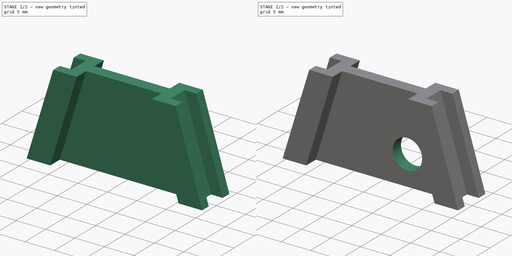
[diagram: build sequence overview — one tinted view per stage of 2, left to right]
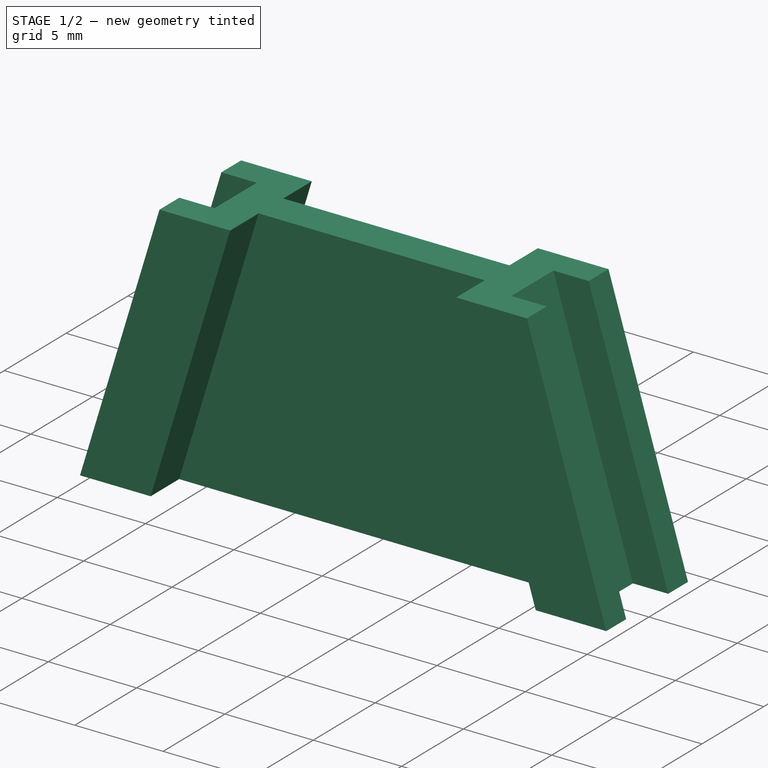
[diagram: stage 1 of 2 — iso view after this stage's code; geometry added in this stage tinted green]
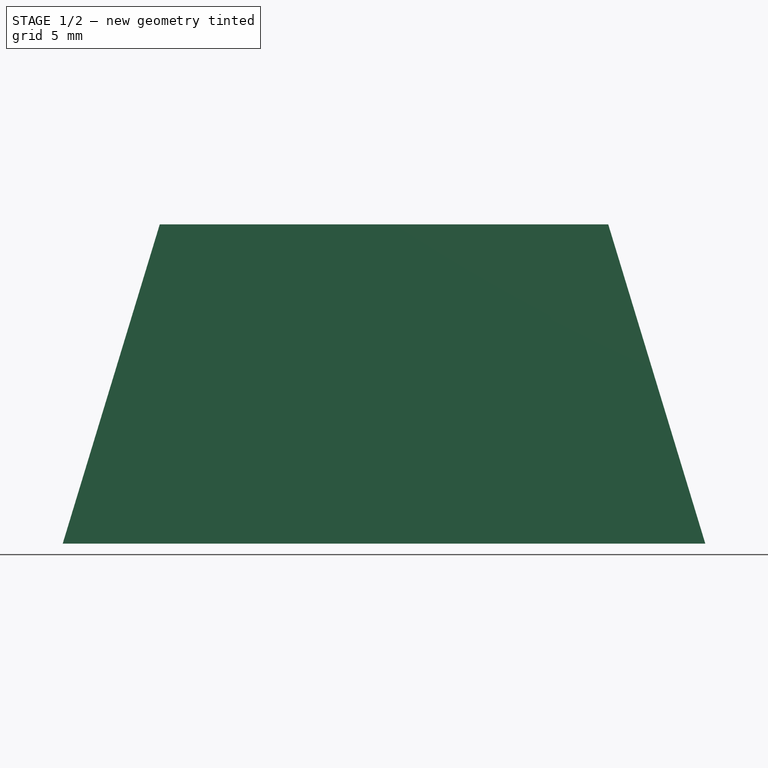
[diagram: stage 1 of 2 — front view after this stage's code; geometry added in this stage tinted green]
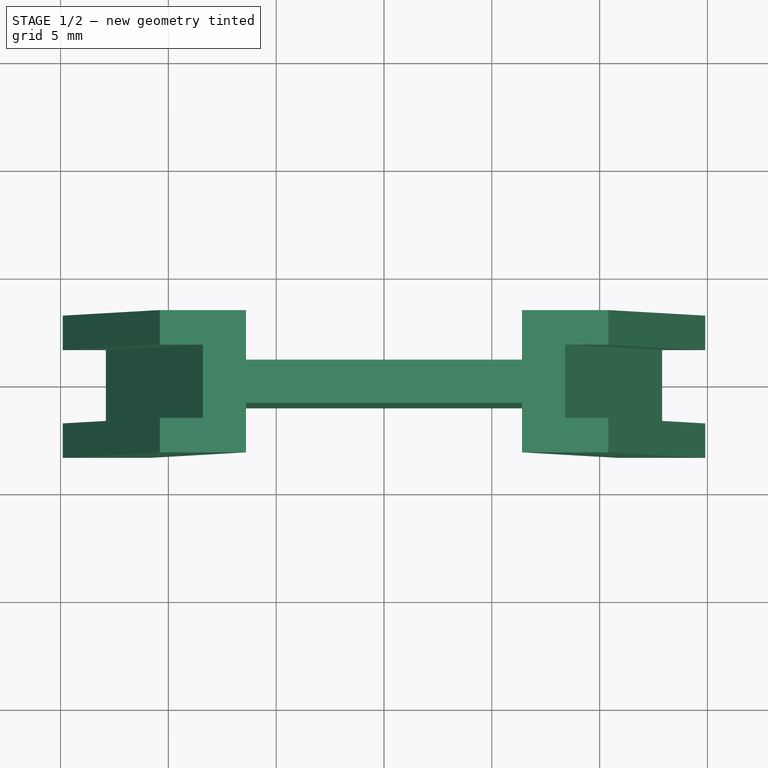
[diagram: stage 1 of 2 — top view after this stage's code; geometry added in this stage tinted green]
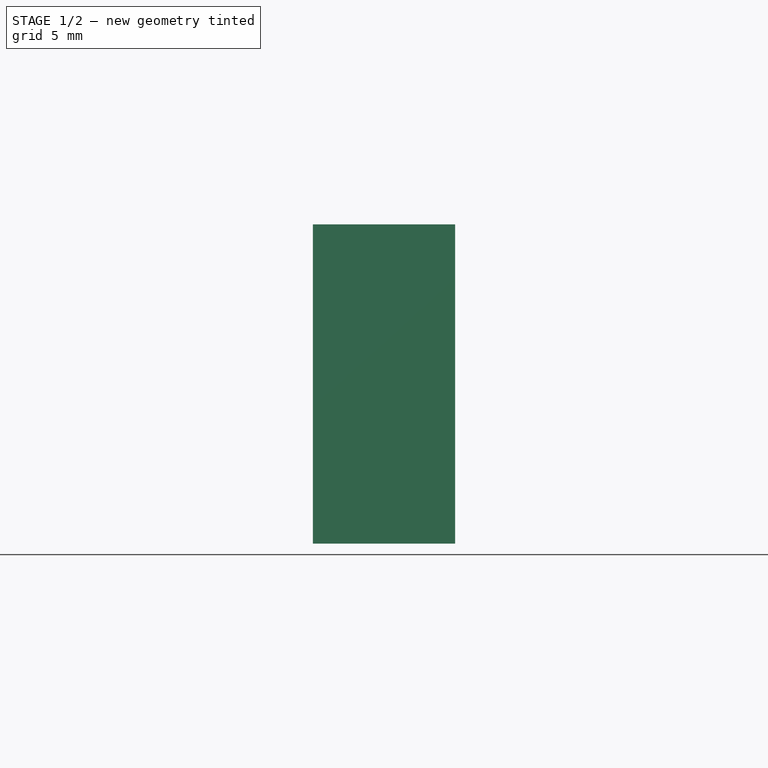
[diagram: stage 1 of 2 — right view after this stage's code; geometry added in this stage tinted green]
FCSTD DOCUMENT  (FreeCAD 0.18R4 (GitTag))
Label: smars_chassis_blank_v2_5mm
License: All rights reserved
LicenseURL: http://en.wikipedia.org/wiki/All_rights_reserved
objects: Sketcher::SketchObject×3, Part::Plane×1, PartDesign::AdditiveLoft×1, PartDesign::Pocket×1, PartDesign::Body×1
note: 9 computed .brp shape members not serialized (recipe doc carries the construction recipe); baked Part::Feature solids carry a one-line shape summary decoded from their .brp

FEATURE [Part::Plane] Plane
  AttacherType = Attacher::AttachEngine3D
  Length = 10
  Placement = pos=(0,0,12.5) rot=(0,0,1;0rad)
  Width = 10
FEATURE [Sketcher::SketchObject] Sketch001  label="top"
  Support = -> [Plane]
  sketch-geometry (20):
    g0: LineSegment StartX=-14.9 StartY=-3.3 StartZ=0 EndX=-10.9 EndY=-3.3 EndZ=0
    g1: LineSegment StartX=-10.9 StartY=-3.3 StartZ=0 EndX=-10.9 EndY=-1 EndZ=0
    g2: LineSegment StartX=-10.9 StartY=-1 StartZ=0 EndX=10.9 EndY=-1 EndZ=0
    g3: LineSegment StartX=10.9 StartY=-1 StartZ=0 EndX=10.9 EndY=-3.3 EndZ=0
    g4: LineSegment StartX=10.9 StartY=-3.3 StartZ=0 EndX=14.9 EndY=-3.3 EndZ=0
    g5: LineSegment StartX=14.9 StartY=-3.3 StartZ=0 EndX=14.9 EndY=-1.7 EndZ=0
    g6: LineSegment StartX=14.9 StartY=-1.7 StartZ=0 EndX=12.9 EndY=-1.7 EndZ=0
    g7: LineSegment StartX=12.9 StartY=-1.7 StartZ=0 EndX=12.9 EndY=1.7 EndZ=0
    g8: LineSegment StartX=12.9 StartY=1.7 StartZ=0 EndX=14.9 EndY=1.7 EndZ=0
    g9: LineSegment StartX=14.9 StartY=1.7 StartZ=0 EndX=14.9 EndY=3.3 EndZ=0
    g10: LineSegment StartX=14.9 StartY=3.3 StartZ=0 EndX=10.9 EndY=3.3 EndZ=0
    g11: LineSegment StartX=10.9 StartY=3.3 StartZ=0 EndX=10.9 EndY=1 EndZ=0
    g12: LineSegment StartX=10.9 StartY=1 StartZ=0 EndX=-10.9 EndY=1 EndZ=0
    g13: LineSegment StartX=-10.9 StartY=1 StartZ=0 EndX=-10.9 EndY=3.3 EndZ=0
    g14: LineSegment StartX=-10.9 StartY=3.3 StartZ=0 EndX=-14.9 EndY=3.3 EndZ=0
    g15: LineSegment StartX=-14.9 StartY=3.3 StartZ=0 EndX=-14.9 EndY=1.7 EndZ=0
    g16: LineSegment StartX=-14.9 StartY=1.7 StartZ=0 EndX=-12.9 EndY=1.7 EndZ=0
    g17: LineSegment StartX=-12.9 StartY=1.7 StartZ=0 EndX=-12.9 EndY=-1.7 EndZ=0
    g18: LineSegment StartX=-12.9 StartY=-1.7 StartZ=0 EndX=-14.9 EndY=-1.7 EndZ=0
    g19: LineSegment StartX=-14.9 StartY=-1.7 StartZ=0 EndX=-14.9 EndY=-3.3 EndZ=0
  constraints (61):
    c: Coincident(g0,g1)
    c: Coincident(g1,g2)
    c: Coincident(g2,g3)
    c: Coincident(g3,g4)
    c: Coincident(g4,g5)
    c: Coincident(g5,g6)
    c: Coincident(g6,g7)
    c: Coincident(g7,g8)
    c: Coincident(g8,g9)
    c: Coincident(g9,g10)
    c: Coincident(g10,g11)
    c: Coincident(g11,g12)
    c: Coincident(g12,g13)
    c: Coincident(g13,g14)
    c: Coincident(g14,g15)
    c: Coincident(g15,g16)
    c: Coincident(g16,g17)
    c: Coincident(g17,g18)
    c: Coincident(g18,g19)
    c: Coincident(g19,g0)
    c: Horizontal(g14)
    c: Horizontal(g12)
    c: Horizontal(g10)
    c: Horizontal(g8)
    c: Horizontal(g6)
    c: Horizontal(g4)
    c: Horizontal(g16)
    c: Vertical(g15)
    c: Vertical(g19)
    c: Vertical(g17)
    c: Vertical(g13)
    c: Vertical(g3)
    c: Vertical(g11)
    c: Vertical(g9)
    c: Vertical(g7)
    c: Parallel(g16,g18)
    c: DistanceY(g15,g15) = 1.6
    c: Symmetric(g1,g2,g-2)
    c: Symmetric(g12,g1,g-1)
    c: Horizontal(g0)
    c: DistanceY(g1,g12) = 2
    c: DistanceY(g17,g17) = 3.4
    c: Equal(g15,g19)
    c: Equal(g19,g9)
    c: Equal(g9,g5)
    c: Equal(g17,g7)
    c: Equal(g13,g1)
    c: Equal(g1,g3)
    c: Equal(g3,g11)
    c: DistanceX(g14,g14) = 4
    c: DistanceX(g18,g18) = 2
    c: Equal(g14,g0)
    c: Equal(g0,g10)
    c: Equal(g10,g4)
    c: Equal(g15,g19)
    c: Equal(g19,g5)
    c: Equal(g5,g9)
    c: Equal(g18,g16)
    c: Equal(g16,g8)
    c: Equal(g8,g6)
    c: DistanceX(g16,g7) = 25.8
FEATURE [Sketcher::SketchObject] CopySketch002  label="bottom"
  Placement = pos=(0,0,14.8) rot=(0,0,1;0rad)
  sketch-geometry (20):
    g0: LineSegment StartX=-10.4 StartY=-3.3 StartZ=0 EndX=-6.39999 EndY=-3.3 EndZ=0
    g1: LineSegment StartX=-6.39999 StartY=-3.3 StartZ=0 EndX=-6.39999 EndY=-1 EndZ=0
    g2: LineSegment StartX=-6.39999 StartY=-1 StartZ=0 EndX=6.39999 EndY=-1 EndZ=0
    g3: LineSegment StartX=6.39999 StartY=-1 StartZ=0 EndX=6.39999 EndY=-3.3 EndZ=0
    g4: LineSegment StartX=6.39999 StartY=-3.3 StartZ=0 EndX=10.4 EndY=-3.3 EndZ=0
    g5: LineSegment StartX=10.4 StartY=-3.3 StartZ=0 EndX=10.4 EndY=-1.7 EndZ=0
    g6: LineSegment StartX=10.4 StartY=-1.7 StartZ=0 EndX=8.40001 EndY=-1.7 EndZ=0
    g7: LineSegment StartX=8.40001 StartY=-1.7 StartZ=0 EndX=8.40001 EndY=1.7 EndZ=0
    g8: LineSegment StartX=8.40001 StartY=1.7 StartZ=0 EndX=10.4 EndY=1.7 EndZ=0
    g9: LineSegment StartX=10.4 StartY=1.7 StartZ=0 EndX=10.4 EndY=3.3 EndZ=0
    g10: LineSegment StartX=10.4 StartY=3.3 StartZ=0 EndX=6.40001 EndY=3.3 EndZ=0
    g11: LineSegment StartX=6.40001 StartY=3.3 StartZ=0 EndX=6.40001 EndY=1 EndZ=0
    g12: LineSegment StartX=6.40001 StartY=1 StartZ=0 EndX=-6.39999 EndY=1 EndZ=0
    g13: LineSegment StartX=-6.39999 StartY=1 StartZ=0 EndX=-6.39999 EndY=3.3 EndZ=0
    g14: LineSegment StartX=-6.39999 StartY=3.3 StartZ=0 EndX=-10.4 EndY=3.3 EndZ=0
    g15: LineSegment StartX=-10.4 StartY=3.3 StartZ=0 EndX=-10.4 EndY=1.7 EndZ=0
    g16: LineSegment StartX=-10.4 StartY=1.7 StartZ=0 EndX=-8.39999 EndY=1.7 EndZ=0
    g17: LineSegment StartX=-8.39999 StartY=1.7 StartZ=0 EndX=-8.39999 EndY=-1.7 EndZ=0
    g18: LineSegment StartX=-8.39999 StartY=-1.7 StartZ=0 EndX=-10.4 EndY=-1.7 EndZ=0
    g19: LineSegment StartX=-10.4 StartY=-1.7 StartZ=0 EndX=-10.4 EndY=-3.3 EndZ=0
  constraints (61):
    c: Coincident(g0,g1)
    c: Coincident(g1,g2)
    c: Coincident(g2,g3)
    c: Coincident(g3,g4)
    c: Coincident(g4,g5)
    c: Coincident(g5,g6)
    c: Coincident(g6,g7)
    c: Coincident(g7,g8)
    c: Coincident(g8,g9)
    c: Coincident(g9,g10)
    c: Coincident(g10,g11)
    c: Coincident(g11,g12)
    c: Coincident(g12,g13)
    c: Coincident(g13,g14)
    c: Coincident(g14,g15)
    c: Coincident(g15,g16)
    c: Coincident(g16,g17)
    c: Coincident(g17,g18)
    c: Coincident(g18,g19)
    c: Coincident(g19,g0)
    c: Horizontal(g14)
    c: Horizontal(g12)
    c: Horizontal(g10)
    c: Horizontal(g8)
    c: Horizontal(g6)
    c: Horizontal(g4)
    c: Horizontal(g16)
    c: Vertical(g15)
    c: Vertical(g19)
    c: Vertical(g17)
    c: Vertical(g13)
    c: Vertical(g3)
    c: Vertical(g11)
    c: Vertical(g9)
    c: Vertical(g7)
    c: Parallel(g16,g18)
    c: DistanceY(g15,g15) = 1.6
    c: Symmetric(g1,g2,g-2)
    c: Symmetric(g12,g1,g-1)
    c: DistanceY(g1,g12) = 2
    c: DistanceY(g17,g17) = 3.4
    c: Equal(g15,g19)
    c: Equal(g19,g9)
    c: Equal(g9,g5)
    c: Equal(g17,g7)
    c: Equal(g13,g1)
    c: Equal(g1,g3)
    c: Equal(g3,g11)
    c: DistanceX(g14,g14) = 4
    c: DistanceX(g18,g18) = 2
    c: Equal(g14,g0)
    c: Equal(g0,g10)
    c: Equal(g10,g4)
    c: Equal(g15,g19)
    c: Equal(g19,g5)
    c: Equal(g5,g9)
    c: Equal(g18,g16)
    c: Equal(g16,g8)
    c: Equal(g8,g6)
    c: DistanceX(g16,g7) = 16.8
    c: Horizontal(g0)
FEATURE [PartDesign::AdditiveLoft] AdditiveLoft
  Closed = false
  Placement = pos=(0,0,14.8) rot=(0,0,1;0rad)
  Profile = -> CopySketch002
  Ruled = false
  Sections = -> [Sketch001]
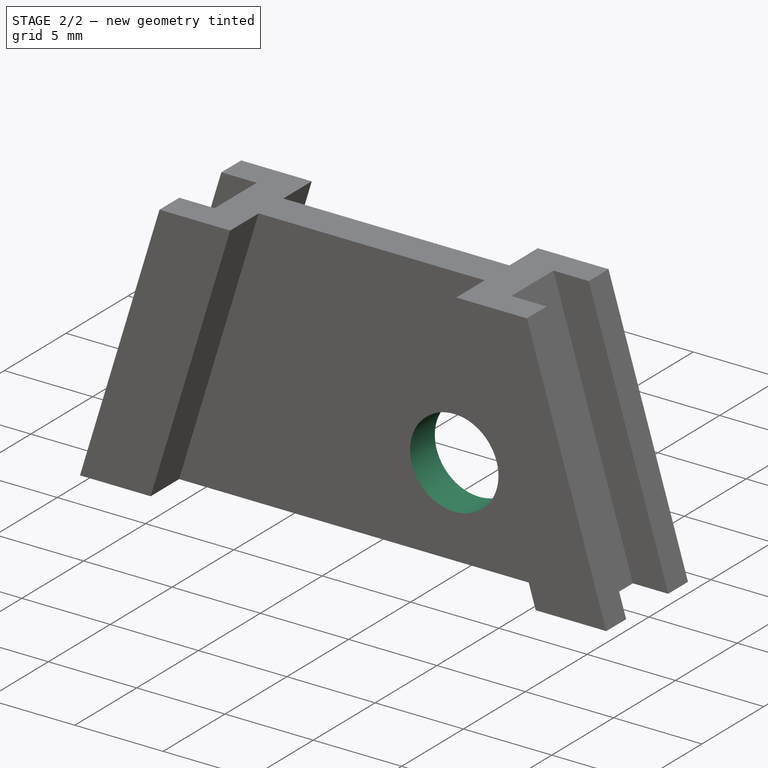
[diagram: stage 2 of 2 — iso view after this stage's code; geometry added in this stage tinted green]
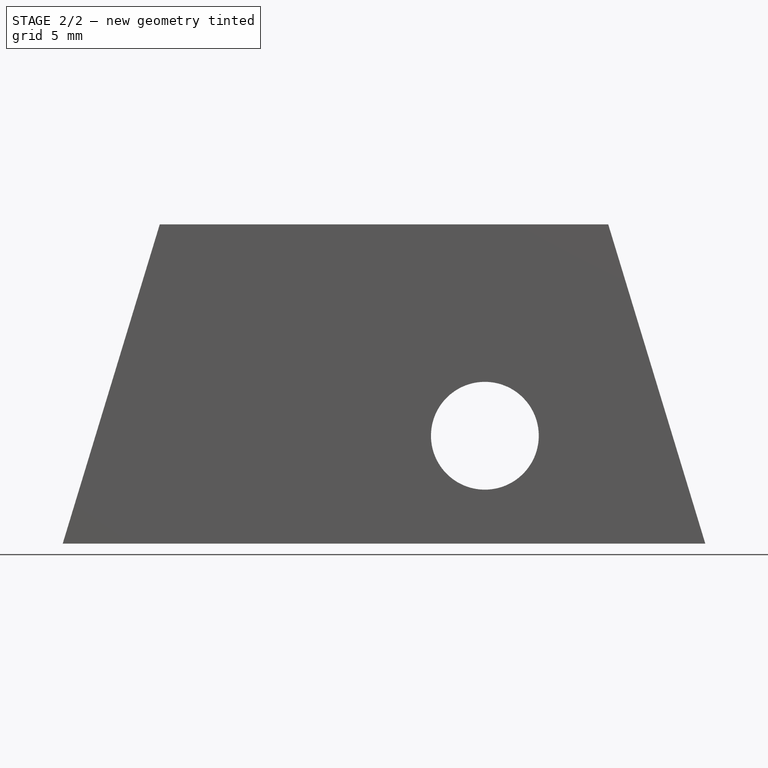
[diagram: stage 2 of 2 — front view after this stage's code; geometry added in this stage tinted green]
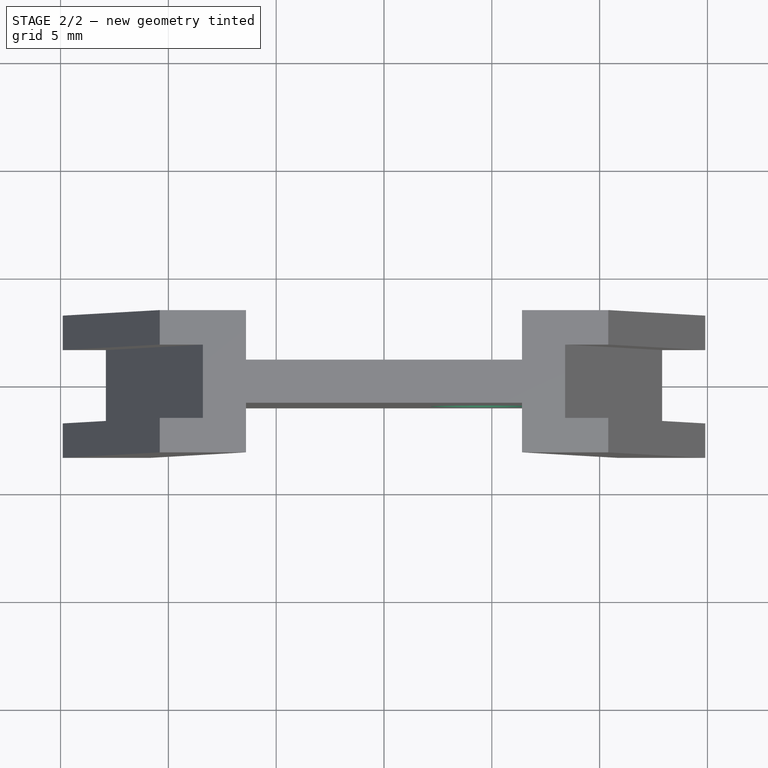
[diagram: stage 2 of 2 — top view after this stage's code; geometry added in this stage tinted green]
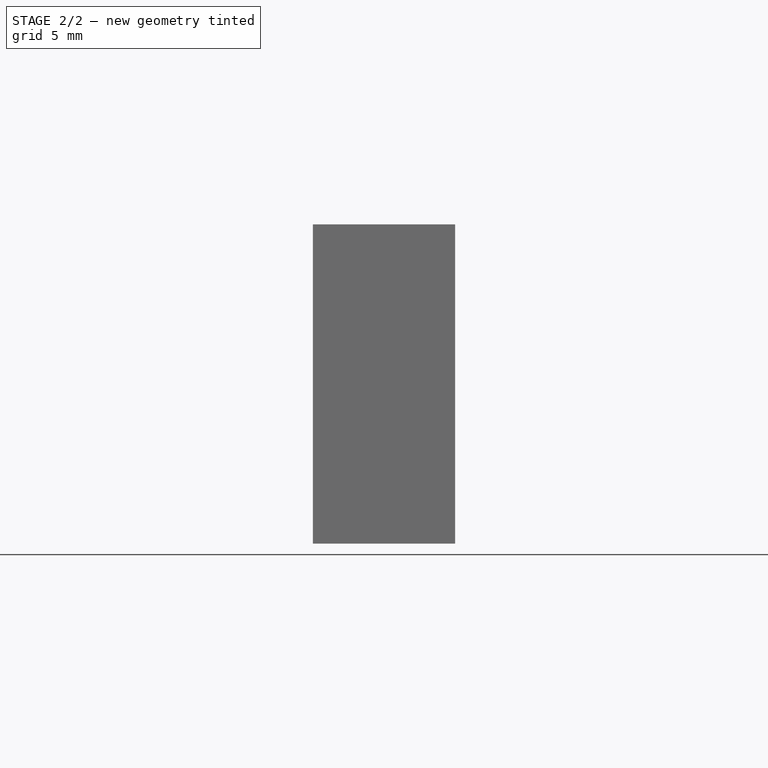
[diagram: stage 2 of 2 — right view after this stage's code; geometry added in this stage tinted green]
FEATURE [Sketcher::SketchObject] Sketch
  ExternalGeometry = -> [AdditiveLoft]
  MapMode = 45
  Placement = pos=(6.12258e-06,1,6.75838) rot=(0.57735,0.57735,0.57735;4.18879rad)
  Support = -> [AdditiveLoft]
  sketch-geometry (1):
    g0: Circle CenterX=-1.75838 CenterY=4.67787 CenterZ=0 NormalX=0 NormalY=0 NormalZ=1 AngleXU=0 Radius=2.5
  constraints (2):
    c: Radius(g0) = 2.5
    c: Distance(g0,g-3) = 5
FEATURE [PartDesign::Pocket] Pocket
  BaseFeature = -> AdditiveLoft
  Length = 5
  Length2 = 100
  Placement = pos=(0,0,14.8) rot=(0,0,1;0rad)
  Profile = -> Sketch
  Type = 1
FEATURE [PartDesign::Body] Body  label="Blank"
  Group = -> [AdditiveLoft,Sketch,Pocket]
  Origin = -> Origin
  Tip = -> Pocket
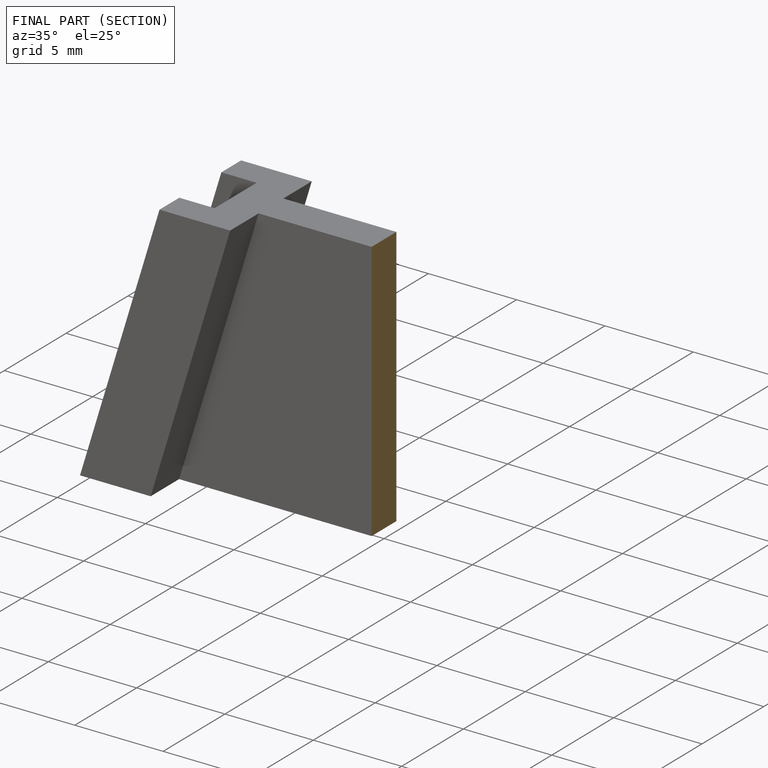
[diagram: finished part — half-section view (interior)]
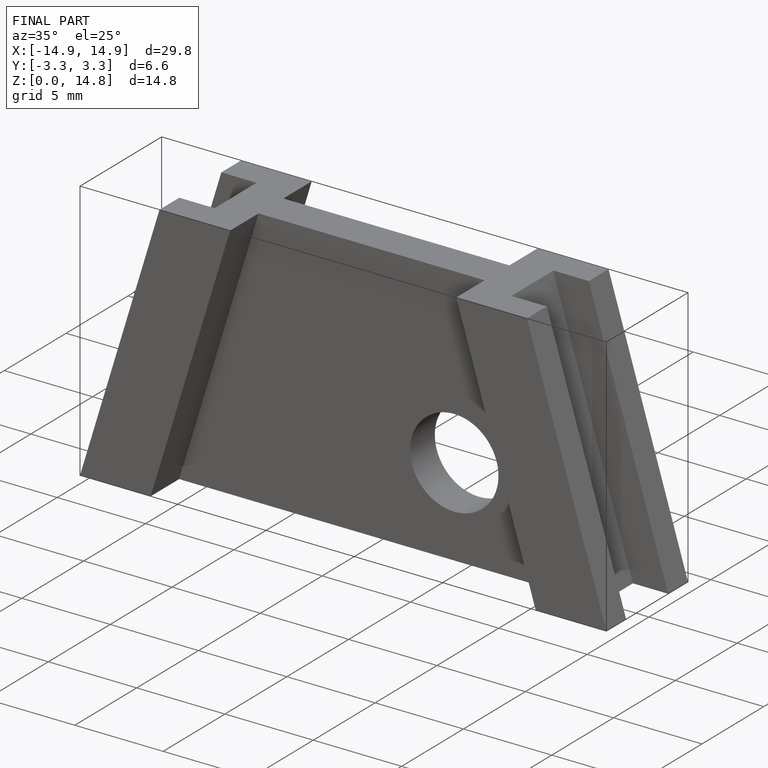
[diagram: finished part — iso view with bounding-box wireframe]
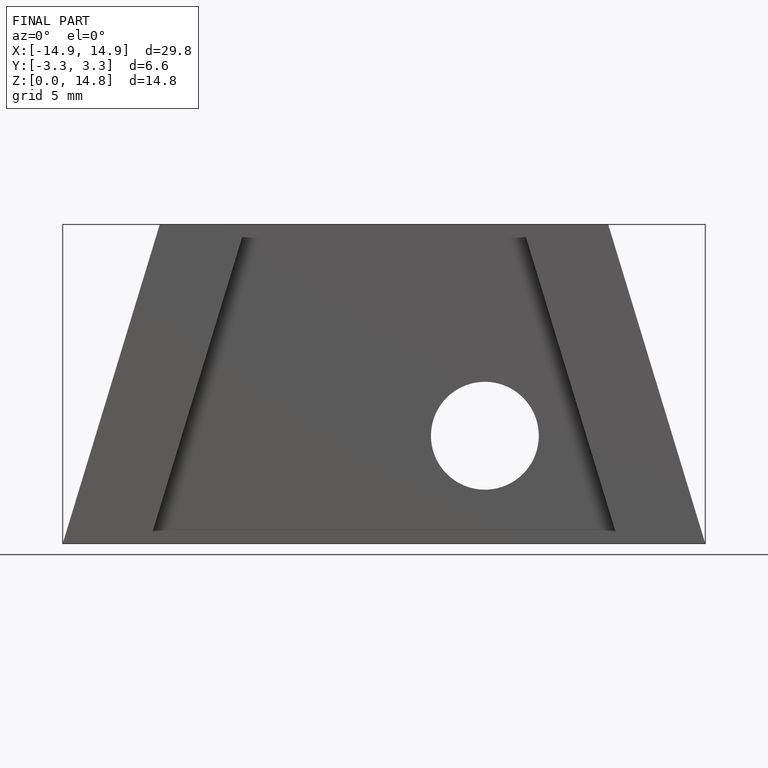
[diagram: finished part — front view with bounding-box wireframe]
